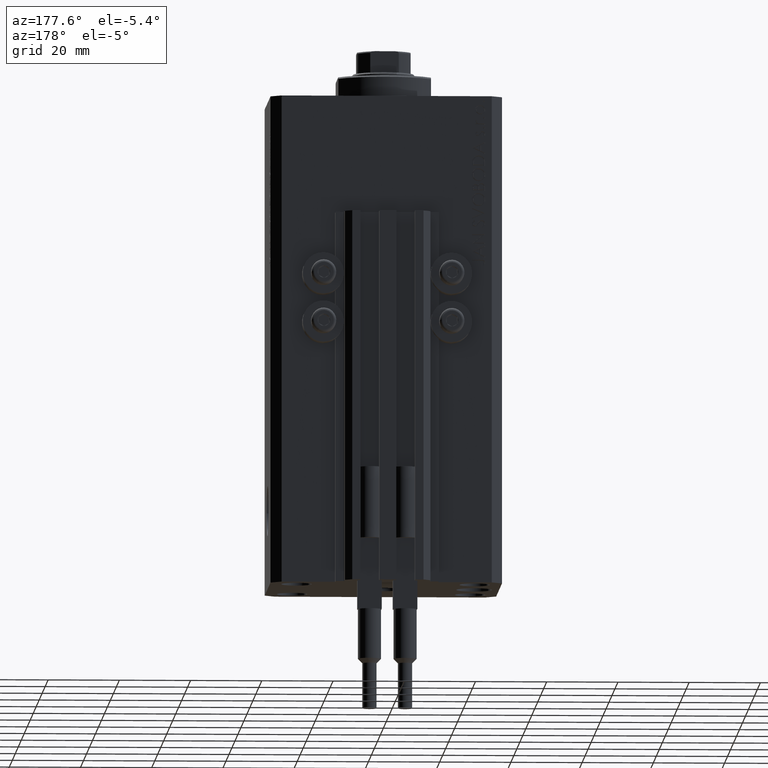
[diagram: clean part render]
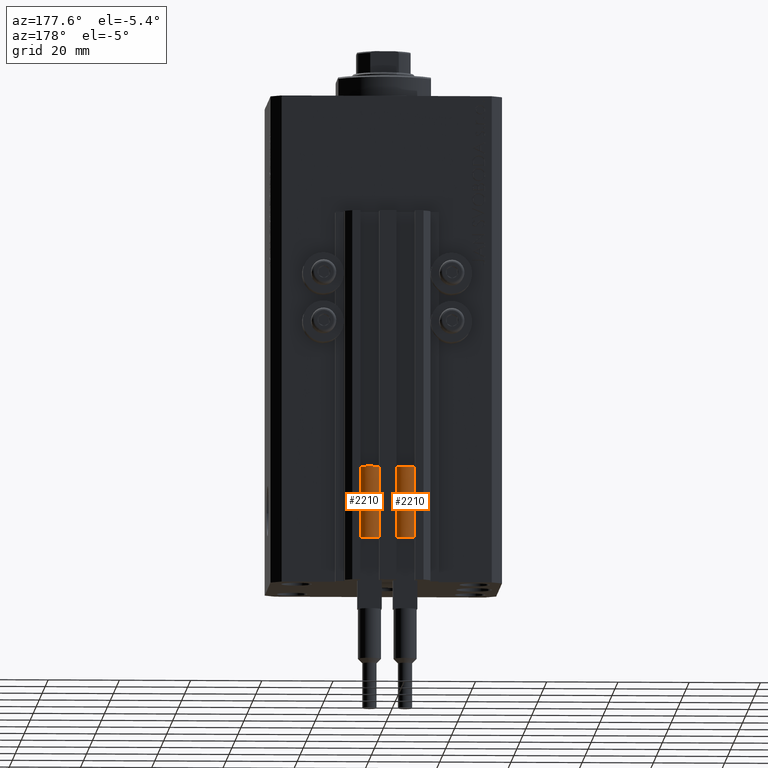
[diagram: same view with one multi-face feature highlighted, each face labeled with its STEP entity id]
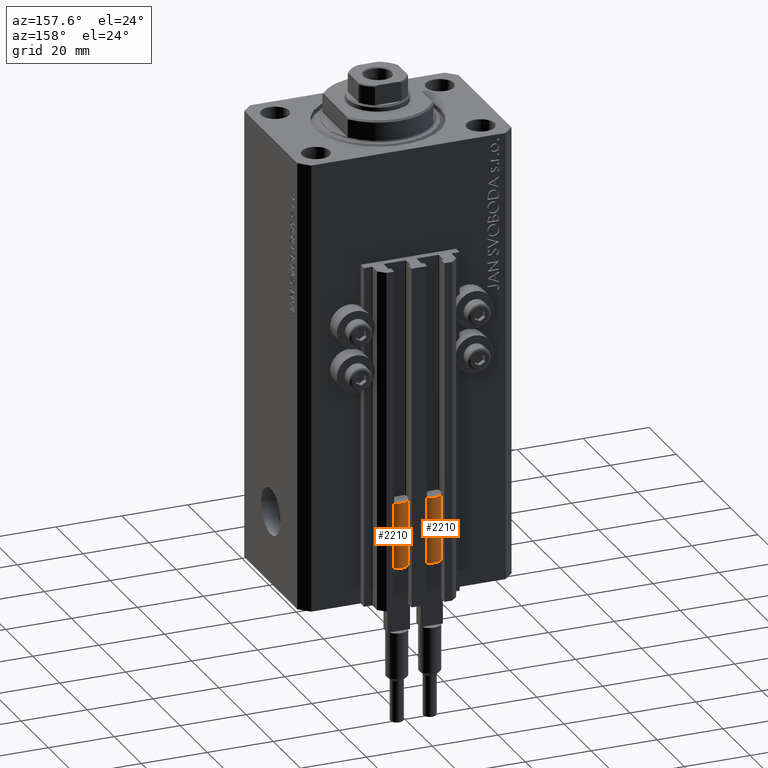
[diagram: same view with one multi-face feature highlighted, each face labeled with its STEP entity id]
A machine part, auxiliary view. The highlighted faces form ONE feature: a constant-radius fillet chain: 2 tangent blend faces with common blend radius 3.4 mm. The faces share edges in the B-rep.
A second angle (auxiliary view) of the same feature is appended — it is thin or edge-on in the first view.
Their STEP definitions:
[1] entity #2210 (Cylinder):
#2000 = CIRCLE ( 'NONE', #25378, 3.400000000000000355 ) ;
#2210 = ADVANCED_FACE ( 'NONE', ( #35600 ), #43642, .T. ) ;
#2922 = ORIENTED_EDGE ( 'NONE', *, *, #28757, .F. ) ;
#5580 = CARTESIAN_POINT ( 'NONE',  ( -3.399999999999999467, -4.915049848600952119E-16, 20.00000000000000000 ) ) ;
#6155 = DIRECTION ( 'NONE',  ( -0.000000000000000000, -0.000000000000000000, -1.000000000000000000 ) ) ;
#6704 = DIRECTION ( 'NONE',  ( 1.000000000000000000, 0.000000000000000000, 0.000000000000000000 ) ) ;
#8790 = CARTESIAN_POINT ( 'NONE',  ( -3.400000000000000355, 0.000000000000000000, 20.00000000000000000 ) ) ;
#10821 = CIRCLE ( 'NONE', #34126, 3.400000000000000355 ) ;
#10866 = CARTESIAN_POINT ( 'NONE',  ( 0.000000000000000000, 0.000000000000000000, 0.000000000000000000 ) ) ;
#12249 = DIRECTION ( 'NONE',  ( 0.000000000000000000, 0.000000000000000000, 1.000000000000000000 ) ) ;
#13060 = CARTESIAN_POINT ( 'NONE',  ( 0.000000000000000000, 0.000000000000000000, 20.00000000000000000 ) ) ;
#16777 = VERTEX_POINT ( 'NONE', #20444 ) ;
#16785 = ORIENTED_EDGE ( 'NONE', *, *, #38748, .T. ) ;
#17210 = DIRECTION ( 'NONE',  ( 0.000000000000000000, 0.000000000000000000, 1.000000000000000000 ) ) ;
#17587 = VECTOR ( 'NONE', #34592, 1000.000000000000000 ) ;
#17777 = CARTESIAN_POINT ( 'NONE',  ( 3.400000000000000355, 0.000000000000000000, 20.00000000000000000 ) ) ;
#18144 = CARTESIAN_POINT ( 'NONE',  ( 0.000000000000000000, 0.000000000000000000, 20.00000000000000000 ) ) ;
#18727 = ORIENTED_EDGE ( 'NONE', *, *, #39472, .F. ) ;
#19166 = AXIS2_PLACEMENT_3D ( 'NONE', #42761, #17210, #21081 ) ;
#19192 = CARTESIAN_POINT ( 'NONE',  ( 3.051229260478471428, -1.500000000000000000, 20.00000000000000000 ) ) ;
#19318 = AXIS2_PLACEMENT_3D ( 'NONE', #39983, #6155, #21462 ) ;
#19432 = ORIENTED_EDGE ( 'NONE', *, *, #28766, .F. ) ;
#19936 = EDGE_LOOP ( 'NONE', ( #18727, #2922, #19432, #32806, #32270, #16785 ) ) ;
#20444 = CARTESIAN_POINT ( 'NONE',  ( -3.051229260478471428, -1.500000000000000000, 20.00000000000000000 ) ) ;
#21081 = DIRECTION ( 'NONE',  ( 1.000000000000000000, 0.000000000000000000, 0.000000000000000000 ) ) ;
#21462 = DIRECTION ( 'NONE',  ( -1.000000000000000000, 0.000000000000000000, 0.000000000000000000 ) ) ;
#22177 = VERTEX_POINT ( 'NONE', #34922 ) ;
#24018 = CIRCLE ( 'NONE', #31007, 3.400000000000000355 ) ;
#25181 = DIRECTION ( 'NONE',  ( 0.000000000000000000, 0.000000000000000000, 1.000000000000000000 ) ) ;
#25378 = AXIS2_PLACEMENT_3D ( 'NONE', #13060, #32276, #47144 ) ;
#27124 = EDGE_CURVE ( 'NONE', #36870, #39674, #27276, .T. ) ;
#27276 = LINE ( 'NONE', #8790, #17587 ) ;
#28757 = EDGE_CURVE ( 'NONE', #46531, #45196, #47963, .T. ) ;
#28766 = EDGE_CURVE ( 'NONE', #16777, #46531, #2000, .T. ) ;
#29601 = DIRECTION ( 'NONE',  ( 1.000000000000000000, 0.000000000000000000, 0.000000000000000000 ) ) ;
#29666 = DIRECTION ( 'NONE',  ( -0.000000000000000000, -0.000000000000000000, -1.000000000000000000 ) ) ;
#31007 = AXIS2_PLACEMENT_3D ( 'NONE', #10866, #12249, #29601 ) ;
#32270 = ORIENTED_EDGE ( 'NONE', *, *, #27124, .T. ) ;
#32276 = DIRECTION ( 'NONE',  ( 0.000000000000000000, 0.000000000000000000, 1.000000000000000000 ) ) ;
#32614 = VECTOR ( 'NONE', #29666, 1000.000000000000000 ) ;
#32804 = CARTESIAN_POINT ( 'NONE',  ( -3.400000000000000355, 0.000000000000000000, 0.000000000000000000 ) ) ;
#32806 = ORIENTED_EDGE ( 'NONE', *, *, #39852, .F. ) ;
#34030 = CARTESIAN_POINT ( 'NONE',  ( 3.400000000000000355, 4.163799117101001052E-16, 20.00000000000000000 ) ) ;
#34126 = AXIS2_PLACEMENT_3D ( 'NONE', #18144, #25181, #6704 ) ;
#34527 = LINE ( 'NONE', #34030, #32614 ) ;
#34592 = DIRECTION ( 'NONE',  ( -0.000000000000000000, -0.000000000000000000, -1.000000000000000000 ) ) ;
#34922 = CARTESIAN_POINT ( 'NONE',  ( 3.400000000000000355, 4.163799117101001052E-16, 0.000000000000000000 ) ) ;
#35600 = FACE_OUTER_BOUND ( 'NONE', #19936, .T. ) ;
#36870 = VERTEX_POINT ( 'NONE', #5580 ) ;
#38748 = EDGE_CURVE ( 'NONE', #39674, #22177, #24018, .T. ) ;
#39472 = EDGE_CURVE ( 'NONE', #45196, #22177, #34527, .T. ) ;
#39674 = VERTEX_POINT ( 'NONE', #32804 ) ;
#39852 = EDGE_CURVE ( 'NONE', #36870, #16777, #10821, .T. ) ;
#39983 = CARTESIAN_POINT ( 'NONE',  ( 0.000000000000000000, 0.000000000000000000, 20.00000000000000000 ) ) ;
#42761 = CARTESIAN_POINT ( 'NONE',  ( 0.000000000000000000, 0.000000000000000000, 20.00000000000000000 ) ) ;
#43642 = CYLINDRICAL_SURFACE ( 'NONE', #19318, 3.400000000000000355 ) ;
#45196 = VERTEX_POINT ( 'NONE', #17777 ) ;
#46531 = VERTEX_POINT ( 'NONE', #19192 ) ;
#47144 = DIRECTION ( 'NONE',  ( 1.000000000000000000, 0.000000000000000000, 0.000000000000000000 ) ) ;
#47963 = CIRCLE ( 'NONE', #19166, 3.400000000000000355 ) ;
[2] entity #2210 (Cylinder):
#2000 = CIRCLE ( 'NONE', #25378, 3.400000000000000355 ) ;
#2210 = ADVANCED_FACE ( 'NONE', ( #35600 ), #43642, .T. ) ;
#2922 = ORIENTED_EDGE ( 'NONE', *, *, #28757, .F. ) ;
#5580 = CARTESIAN_POINT ( 'NONE',  ( -3.399999999999999467, -4.915049848600952119E-16, 20.00000000000000000 ) ) ;
#6155 = DIRECTION ( 'NONE',  ( -0.000000000000000000, -0.000000000000000000, -1.000000000000000000 ) ) ;
#6704 = DIRECTION ( 'NONE',  ( 1.000000000000000000, 0.000000000000000000, 0.000000000000000000 ) ) ;
#8790 = CARTESIAN_POINT ( 'NONE',  ( -3.400000000000000355, 0.000000000000000000, 20.00000000000000000 ) ) ;
#10821 = CIRCLE ( 'NONE', #34126, 3.400000000000000355 ) ;
#10866 = CARTESIAN_POINT ( 'NONE',  ( 0.000000000000000000, 0.000000000000000000, 0.000000000000000000 ) ) ;
#12249 = DIRECTION ( 'NONE',  ( 0.000000000000000000, 0.000000000000000000, 1.000000000000000000 ) ) ;
#13060 = CARTESIAN_POINT ( 'NONE',  ( 0.000000000000000000, 0.000000000000000000, 20.00000000000000000 ) ) ;
#16777 = VERTEX_POINT ( 'NONE', #20444 ) ;
#16785 = ORIENTED_EDGE ( 'NONE', *, *, #38748, .T. ) ;
#17210 = DIRECTION ( 'NONE',  ( 0.000000000000000000, 0.000000000000000000, 1.000000000000000000 ) ) ;
#17587 = VECTOR ( 'NONE', #34592, 1000.000000000000000 ) ;
#17777 = CARTESIAN_POINT ( 'NONE',  ( 3.400000000000000355, 0.000000000000000000, 20.00000000000000000 ) ) ;
#18144 = CARTESIAN_POINT ( 'NONE',  ( 0.000000000000000000, 0.000000000000000000, 20.00000000000000000 ) ) ;
#18727 = ORIENTED_EDGE ( 'NONE', *, *, #39472, .F. ) ;
#19166 = AXIS2_PLACEMENT_3D ( 'NONE', #42761, #17210, #21081 ) ;
#19192 = CARTESIAN_POINT ( 'NONE',  ( 3.051229260478471428, -1.500000000000000000, 20.00000000000000000 ) ) ;
#19318 = AXIS2_PLACEMENT_3D ( 'NONE', #39983, #6155, #21462 ) ;
#19432 = ORIENTED_EDGE ( 'NONE', *, *, #28766, .F. ) ;
#19936 = EDGE_LOOP ( 'NONE', ( #18727, #2922, #19432, #32806, #32270, #16785 ) ) ;
#20444 = CARTESIAN_POINT ( 'NONE',  ( -3.051229260478471428, -1.500000000000000000, 20.00000000000000000 ) ) ;
#21081 = DIRECTION ( 'NONE',  ( 1.000000000000000000, 0.000000000000000000, 0.000000000000000000 ) ) ;
#21462 = DIRECTION ( 'NONE',  ( -1.000000000000000000, 0.000000000000000000, 0.000000000000000000 ) ) ;
#22177 = VERTEX_POINT ( 'NONE', #34922 ) ;
#24018 = CIRCLE ( 'NONE', #31007, 3.400000000000000355 ) ;
#25181 = DIRECTION ( 'NONE',  ( 0.000000000000000000, 0.000000000000000000, 1.000000000000000000 ) ) ;
#25378 = AXIS2_PLACEMENT_3D ( 'NONE', #13060, #32276, #47144 ) ;
#27124 = EDGE_CURVE ( 'NONE', #36870, #39674, #27276, .T. ) ;
#27276 = LINE ( 'NONE', #8790, #17587 ) ;
#28757 = EDGE_CURVE ( 'NONE', #46531, #45196, #47963, .T. ) ;
#28766 = EDGE_CURVE ( 'NONE', #16777, #46531, #2000, .T. ) ;
#29601 = DIRECTION ( 'NONE',  ( 1.000000000000000000, 0.000000000000000000, 0.000000000000000000 ) ) ;
#29666 = DIRECTION ( 'NONE',  ( -0.000000000000000000, -0.000000000000000000, -1.000000000000000000 ) ) ;
#31007 = AXIS2_PLACEMENT_3D ( 'NONE', #10866, #12249, #29601 ) ;
#32270 = ORIENTED_EDGE ( 'NONE', *, *, #27124, .T. ) ;
#32276 = DIRECTION ( 'NONE',  ( 0.000000000000000000, 0.000000000000000000, 1.000000000000000000 ) ) ;
#32614 = VECTOR ( 'NONE', #29666, 1000.000000000000000 ) ;
#32804 = CARTESIAN_POINT ( 'NONE',  ( -3.400000000000000355, 0.000000000000000000, 0.000000000000000000 ) ) ;
#32806 = ORIENTED_EDGE ( 'NONE', *, *, #39852, .F. ) ;
#34030 = CARTESIAN_POINT ( 'NONE',  ( 3.400000000000000355, 4.163799117101001052E-16, 20.00000000000000000 ) ) ;
#34126 = AXIS2_PLACEMENT_3D ( 'NONE', #18144, #25181, #6704 ) ;
#34527 = LINE ( 'NONE', #34030, #32614 ) ;
#34592 = DIRECTION ( 'NONE',  ( -0.000000000000000000, -0.000000000000000000, -1.000000000000000000 ) ) ;
#34922 = CARTESIAN_POINT ( 'NONE',  ( 3.400000000000000355, 4.163799117101001052E-16, 0.000000000000000000 ) ) ;
#35600 = FACE_OUTER_BOUND ( 'NONE', #19936, .T. ) ;
#36870 = VERTEX_POINT ( 'NONE', #5580 ) ;
#38748 = EDGE_CURVE ( 'NONE', #39674, #22177, #24018, .T. ) ;
#39472 = EDGE_CURVE ( 'NONE', #45196, #22177, #34527, .T. ) ;
#39674 = VERTEX_POINT ( 'NONE', #32804 ) ;
#39852 = EDGE_CURVE ( 'NONE', #36870, #16777, #10821, .T. ) ;
#39983 = CARTESIAN_POINT ( 'NONE',  ( 0.000000000000000000, 0.000000000000000000, 20.00000000000000000 ) ) ;
#42761 = CARTESIAN_POINT ( 'NONE',  ( 0.000000000000000000, 0.000000000000000000, 20.00000000000000000 ) ) ;
#43642 = CYLINDRICAL_SURFACE ( 'NONE', #19318, 3.400000000000000355 ) ;
#45196 = VERTEX_POINT ( 'NONE', #17777 ) ;
#46531 = VERTEX_POINT ( 'NONE', #19192 ) ;
#47144 = DIRECTION ( 'NONE',  ( 1.000000000000000000, 0.000000000000000000, 0.000000000000000000 ) ) ;
#47963 = CIRCLE ( 'NONE', #19166, 3.400000000000000355 ) ;